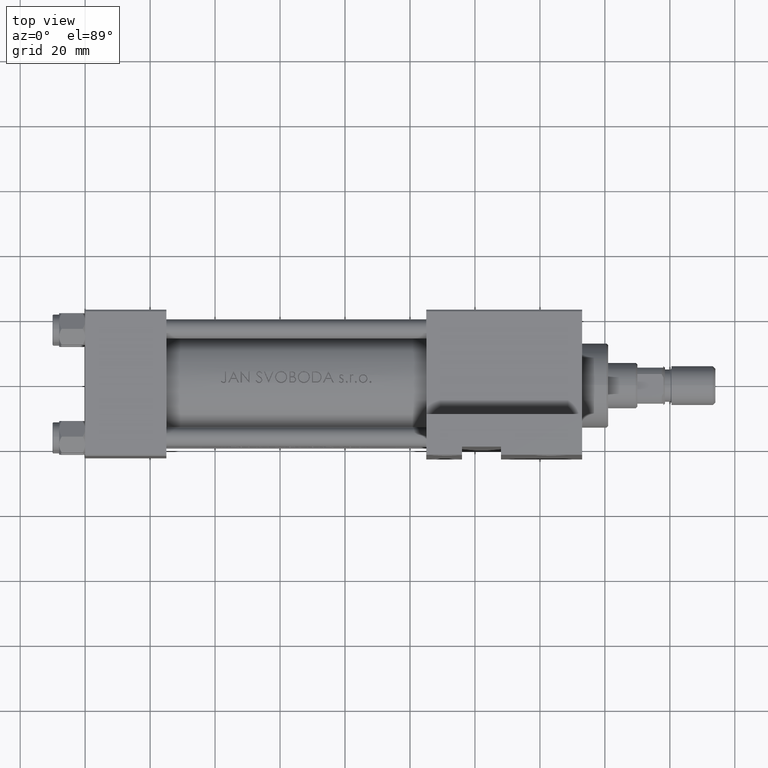
[diagram: clean part render]
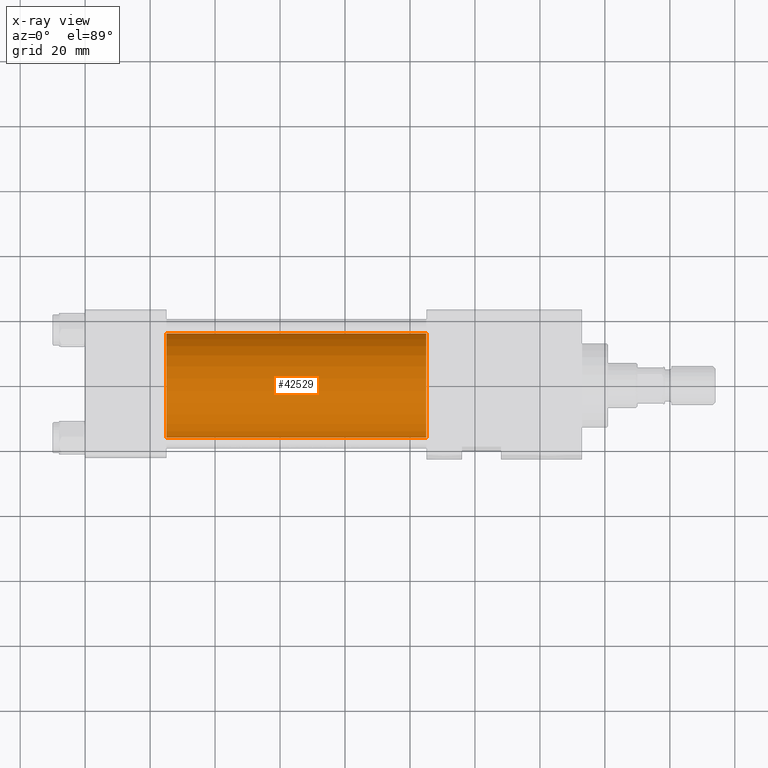
[diagram: x-ray — body ghosted, one internal face saturated and labeled with its STEP entity id]
A machine part, top view, then the same camera in x-ray: the body is ghosted and one INTERNAL B-rep face — a face not visible from any outside direction — is saturated and labeled: STEP entity #42529.
In plain terms, the highlighted cylindrical surface (partial cylindrical patch) has radius 16 mm, axis along (-1, -0, 0).
Its self-contained STEP definition (entity closure, byte-faithful):
#903 = LINE ( 'NONE', #8205, #11499 ) ;
#1155 = CARTESIAN_POINT ( 'NONE',  ( 25.00000000000000000, 6.123233995736727825E-17, -0.4999999999999970024 ) ) ;
#2444 = DIRECTION ( 'NONE',  ( -1.000000000000000000, -0.000000000000000000, -0.000000000000000000 ) ) ;
#2572 = EDGE_CURVE ( 'NONE', #21521, #5881, #38542, .T. ) ;
#4820 = CYLINDRICAL_SURFACE ( 'NONE', #46626, 16.00000000000000000 ) ;
#5881 = VERTEX_POINT ( 'NONE', #35765 ) ;
#6487 = ORIENTED_EDGE ( 'NONE', *, *, #8278, .T. ) ;
#8205 = CARTESIAN_POINT ( 'NONE',  ( 105.0000000000000142, 2.020667218593132311E-15, -16.49999999999999645 ) ) ;
#8278 = EDGE_CURVE ( 'NONE', #29231, #5881, #903, .T. ) ;
#9434 = DIRECTION ( 'NONE',  ( 0.000000000000000000, 0.000000000000000000, 1.000000000000000000 ) ) ;
#9754 = CARTESIAN_POINT ( 'NONE',  ( 105.0000000000000142, 6.123233995736727825E-17, 15.50000000000000355 ) ) ;
#10713 = EDGE_CURVE ( 'NONE', #17352, #21521, #21208, .T. ) ;
#10764 = VECTOR ( 'NONE', #2444, 1000.000000000000000 ) ;
#11499 = VECTOR ( 'NONE', #23068, 1000.000000000000000 ) ;
#12601 = DIRECTION ( 'NONE',  ( -1.000000000000000000, -0.000000000000000000, -0.000000000000000000 ) ) ;
#15419 = CIRCLE ( 'NONE', #19301, 16.00000000000000000 ) ;
#17352 = VERTEX_POINT ( 'NONE', #20070 ) ;
#19301 = AXIS2_PLACEMENT_3D ( 'NONE', #47375, #20594, #42499 ) ;
#19432 = DIRECTION ( 'NONE',  ( 0.000000000000000000, 0.000000000000000000, -1.000000000000000000 ) ) ;
#19949 = EDGE_LOOP ( 'NONE', ( #43025, #6487, #21234, #25793 ) ) ;
#20070 = CARTESIAN_POINT ( 'NONE',  ( 105.0000000000000142, 6.123233995736727825E-17, 15.50000000000000355 ) ) ;
#20594 = DIRECTION ( 'NONE',  ( 1.000000000000000000, 0.000000000000000000, 0.000000000000000000 ) ) ;
#21208 = LINE ( 'NONE', #9754, #10764 ) ;
#21234 = ORIENTED_EDGE ( 'NONE', *, *, #2572, .F. ) ;
#21521 = VERTEX_POINT ( 'NONE', #40345 ) ;
#23068 = DIRECTION ( 'NONE',  ( -1.000000000000000000, -0.000000000000000000, -0.000000000000000000 ) ) ;
#23088 = DIRECTION ( 'NONE',  ( 1.000000000000000000, 0.000000000000000000, 0.000000000000000000 ) ) ;
#25793 = ORIENTED_EDGE ( 'NONE', *, *, #10713, .F. ) ;
#29231 = VERTEX_POINT ( 'NONE', #37673 ) ;
#34544 = FACE_OUTER_BOUND ( 'NONE', #19949, .T. ) ;
#35765 = CARTESIAN_POINT ( 'NONE',  ( 25.00000000000000000, 2.020667218593132311E-15, -16.49999999999999645 ) ) ;
#37673 = CARTESIAN_POINT ( 'NONE',  ( 105.0000000000000142, 2.020667218593132311E-15, -16.49999999999999645 ) ) ;
#38542 = CIRCLE ( 'NONE', #47982, 16.00000000000000000 ) ;
#39136 = EDGE_CURVE ( 'NONE', #17352, #29231, #15419, .T. ) ;
#40345 = CARTESIAN_POINT ( 'NONE',  ( 25.00000000000000000, 6.123233995736727825E-17, 15.50000000000000355 ) ) ;
#42308 = CARTESIAN_POINT ( 'NONE',  ( 105.0000000000000142, 6.123233995736727825E-17, -0.4999999999999970024 ) ) ;
#42499 = DIRECTION ( 'NONE',  ( 0.000000000000000000, 0.000000000000000000, -1.000000000000000000 ) ) ;
#42529 = ADVANCED_FACE ( 'NONE', ( #34544 ), #4820, .F. ) ;
#43025 = ORIENTED_EDGE ( 'NONE', *, *, #39136, .T. ) ;
#46626 = AXIS2_PLACEMENT_3D ( 'NONE', #42308, #12601, #9434 ) ;
#47375 = CARTESIAN_POINT ( 'NONE',  ( 105.0000000000000142, 6.123233995736727825E-17, -0.4999999999999970024 ) ) ;
#47982 = AXIS2_PLACEMENT_3D ( 'NONE', #1155, #23088, #19432 ) ;